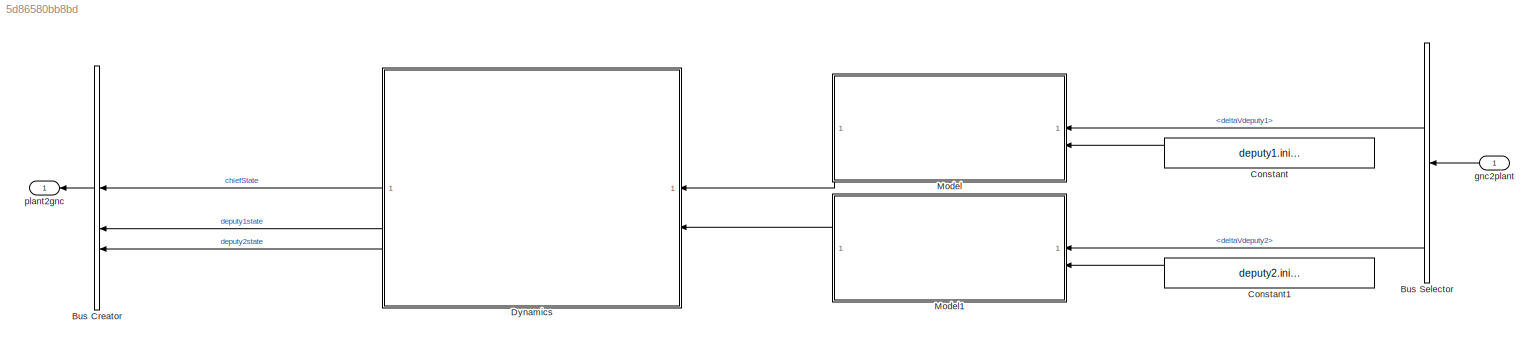
MODEL slx_5d86580bb8bd
KIND model
CONFIG AbsTol = auto
CONFIG EnableMultiTasking = off
CONFIG FixedStep = dt
CONFIG MaxStep = auto
CONFIG MinStep = auto
CONFIG RelTol = 1e-3
CONFIG SampleTimeConstraint = Unconstrained
CONFIG SolverName = ode4
CONFIG StartTime = 0.0
CONFIG StopTime = t_duration
BLOCK [BusCreator] Bus Creator
  DisplayOption = bar
  InheritFromInputs = off
  Inputs = 3
  NonVirtualBus = on
  OutDataTypeStr = Bus: plant2gnc
BLOCK [BusSelector] Bus Selector
  OutputSignals = deltaVdeputy1,deltaVdeputy2
BLOCK [Constant] Constant
  Value = deputy1.initialConditions.mass_kg
BLOCK [Constant] Constant1
  Value = deputy2.initialConditions.mass_kg
BLOCK [ModelReference] Dynamics
  ModelNameDialog = dynamics
  ModelReferenceVersion = 1.39
BLOCK [ModelReference] Model
  ModelNameDialog = impulsiveThruster
  ModelReferenceVersion = 1.5
BLOCK [ModelReference] Model1
  ModelNameDialog = impulsiveThruster
  ModelReferenceVersion = 1.5
BLOCK [Inport] gnc2plant
  OutDataTypeStr = Bus: gnc2plant
BLOCK [Outport] plant2gnc
  BusOutputAsStruct = on
  OutDataTypeStr = Bus: plant2gnc
LINE Bus Creator:1 -> plant2gnc:1
LINE Bus Selector:1 -> Model:1
LINE Bus Selector:2 -> Model1:1
LINE Constant1:1 -> Model1:2
LINE Constant:1 -> Model:2
LINE Dynamics:1 -> Bus Creator:1
LINE Dynamics:2 -> Bus Creator:2
LINE Dynamics:3 -> Bus Creator:3
LINE Model1:1 -> Dynamics:2
LINE Model:1 -> Dynamics:1
LINE gnc2plant:1 -> Bus Selector:1
